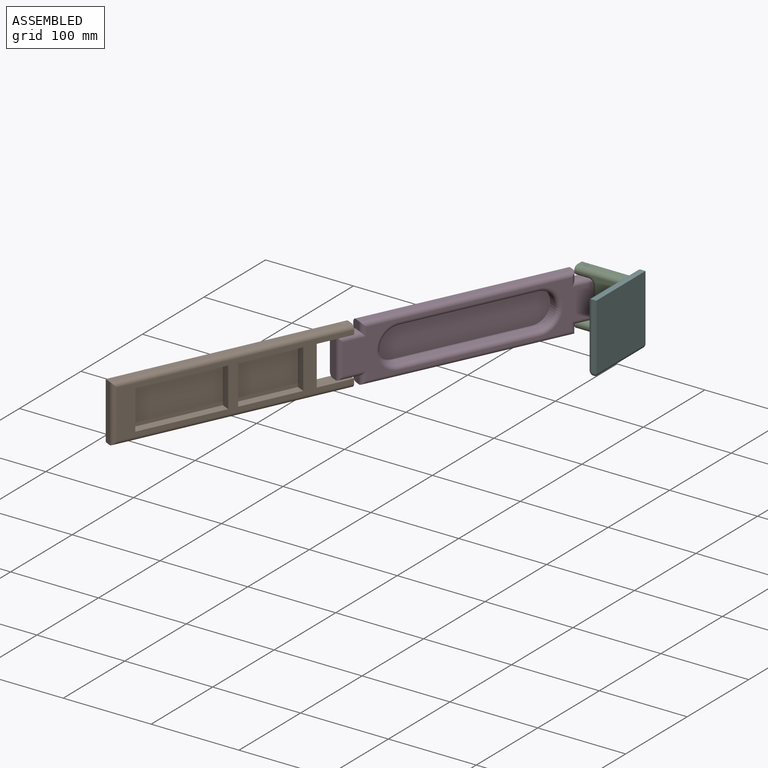
[diagram: assembled view]
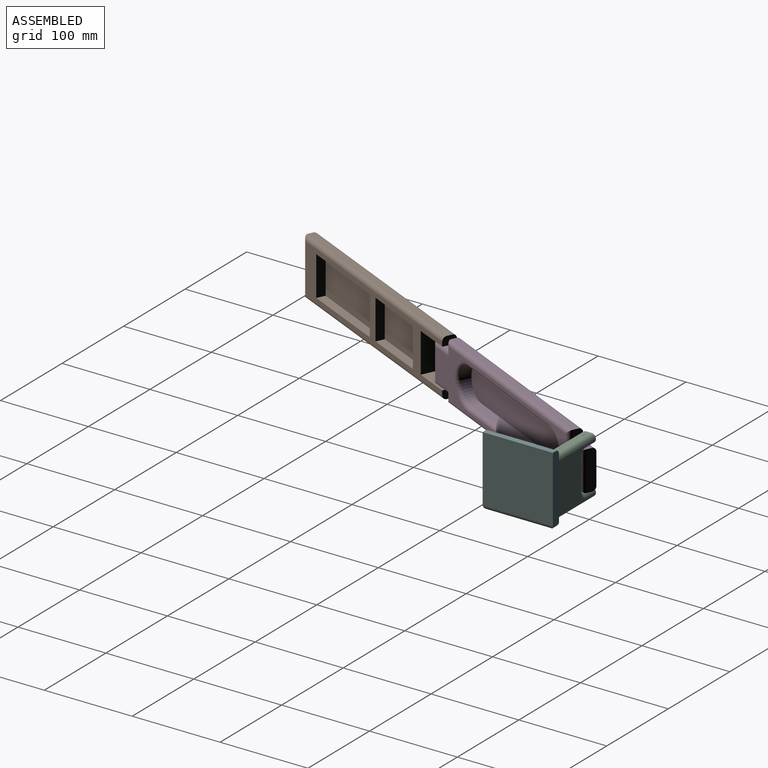
[diagram: assembled view, second angle]
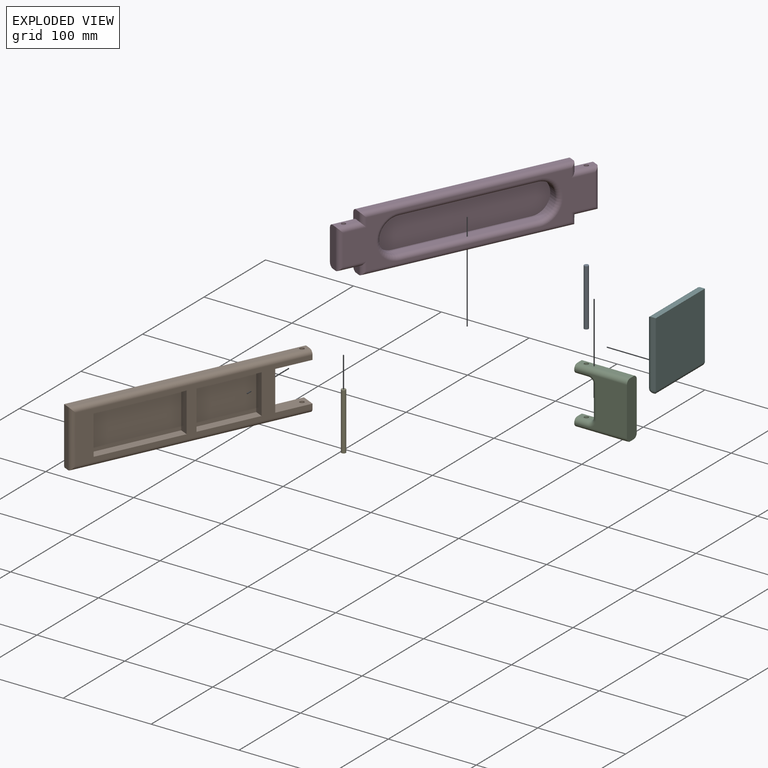
[diagram: exploded view]
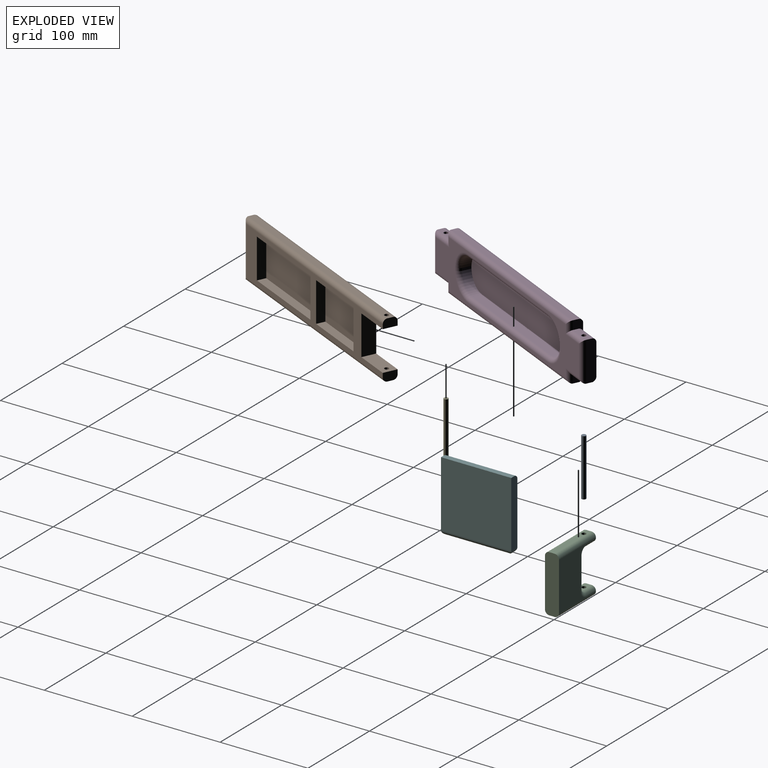
[diagram: exploded view, second angle]
ASSEMBLY  parts=6 mates=5
PART A: 3 faces, bbox 5x5x65 mm
  f0: cylinder r=2.5mm len=65mm, axis (0,0,1), area 1021mm2, adj f1,f2
  f1: plane 5x5mm, normal (0,0,-1), area 19.6mm2, adj f0
  f2: plane 5x5mm, normal (0,0,1), area 19.6mm2, adj f0
PART B: 28 faces, bbox 260x16x65 mm
  f0: plane 255x55mm, normal (0,-1,0), area 4569mm2, adj f1,f5,f9,f10,f11,f12,f14,f15
  f1: plane 16x10mm, normal (1,0,0), area 149.3mm2, adj f0,f2,f6,f19,f22,f25
  f2: plane 255x55mm, normal (0,1,0), area 12219mm2, adj f1,f5,f19,f20,f21,f25,f26,f27
  f3: cylinder r=2.5mm len=10mm, axis (0,0,1), area 157.1mm2, adj f6,f19
  f4: plane 65x6mm, normal (-1,0,0), area 390mm2, adj f6,f7,f24,f27
  f5: plane 16x10mm, normal (1,0,0), area 149.3mm2, adj f0,f2,f7,f21,f23,f26
  f6: plane 260x6mm, normal (0,0,1), area 1540.4mm2, adj f1,f3,f4,f22,f25
  f7: plane 260x6mm, normal (0,0,-1), area 1540.4mm2, adj f4,f5,f8,f23,f26
  f8: cylinder r=2.5mm len=10mm, axis (0,0,1), area 157.1mm2, adj f7,f21
  f9: plane 70x10mm, normal (0,0,-1), area 700mm2, adj f0,f10,f12,f13
  f10: plane 45x10mm, normal (1,0,0), area 450mm2, adj f0,f9,f11,f13
  f11: plane 70x10mm, normal (0,0,1), area 700mm2, adj f0,f10,f12,f13
  f12: plane 45x10mm, normal (-1,0,0), area 450mm2, adj f0,f9,f11,f13
  f13: plane 70x45mm, normal (0,-1,0), area 3150mm2, adj f9,f10,f11,f12
  f14: plane 100x10mm, normal (0,0,-1), area 1000mm2, adj f0,f15,f17,f18
  f15: plane 45x10mm, normal (1,0,0), area 450mm2, adj f0,f14,f16,f18
  f16: plane 100x10mm, normal (0,0,1), area 1000mm2, adj f0,f15,f17,f18
  f17: plane 45x10mm, normal (-1,0,0), area 450mm2, adj f0,f14,f16,f18
  f18: plane 100x45mm, normal (0,-1,0), area 4500mm2, adj f14,f15,f16,f17
  f19: plane 40.13x16mm, normal (0,0,-1), area 622.5mm2, adj f0,f1,f2,f3,f20
  f20: plane 45x16mm, normal (1,0,0), area 720mm2, adj f0,f2,f19,f21
  f21: plane 40.13x16mm, normal (0,0,1), area 622.5mm2, adj f0,f2,f5,f8,f20
  f22: cylinder r=5mm len=260mm, axis (-1,0,0), area 2027.8mm2, adj f0,f1,f6,f24
  f23: cylinder r=5mm len=260mm, axis (1,0,0), area 2027.8mm2, adj f0,f5,f7,f24
  f24: cylinder r=5mm len=65mm, axis (0,0,-1), area 482mm2, adj f0,f4,f22,f23
  f25: cylinder r=5mm len=260mm, axis (1,0,0), area 2027.8mm2, adj f1,f2,f6,f27
  f26: cylinder r=5mm len=260mm, axis (-1,0,0), area 2027.8mm2, adj f2,f5,f7,f27
  f27: cylinder r=5mm len=65mm, axis (0,0,-1), area 482mm2, adj f2,f4,f25,f26
PART C: 24 faces, bbox 65x16x60 mm
  f0: plane 35x6mm, normal (0,0,1), area 210mm2, adj f16,f17,f20,f21
  f1: plane 60x6mm, normal (-1,0,0), area 340.4mm2, adj f5,f7,f11,f12,f15
  f2: plane 55x45mm, normal (0,-1,0), area 1967.9mm2, adj f5,f12,f13,f14,f16,f18
  f3: plane 60x6mm, normal (1,0,0), area 340.4mm2, adj f5,f9,f10,f13,f22
  f4: plane 55x45mm, normal (0,1,0), area 1967.9mm2, adj f5,f15,f19,f21,f22,f23
  f5: plane 65x16mm, normal (0,0,-1), area 1018.5mm2, adj f1,f2,f3,f4,f12,f13,f15,f22
  f6: plane 15x6mm, normal (1,0,0), area 70.4mm2, adj f7,f11,f12,f15,f17
  f7: plane 16x10mm, normal (0,0,1), area 138.5mm2, adj f1,f6,f12,f15
  f8: plane 15x6mm, normal (-1,0,0), area 70.4mm2, adj f9,f10,f13,f20,f22
  f9: plane 16x10mm, normal (0,0,1), area 138.5mm2, adj f3,f8,f13,f22
  f10: cylinder r=2.5mm len=10mm, axis (1,0,0), area 157.1mm2, adj f3,f8
  f11: cylinder r=2.5mm len=10mm, axis (1,0,0), area 157.1mm2, adj f1,f6
  f12: cylinder r=5mm len=60mm, axis (0,0,-1), area 589mm2, adj f1,f2,f5,f6,f7,f14
  f13: cylinder r=5mm len=60mm, axis (0,0,-1), area 589mm2, adj f2,f3,f5,f8,f9,f18
  f14: torus R=10mm, axis (0,1,0), area 84.1mm2, adj f2,f12,f16,f17
  f15: cylinder r=5mm len=60mm, axis (0,0,-1), area 589mm2, adj f1,f4,f5,f6,f7,f19
  f16: cylinder r=5mm len=35mm, axis (-1,0,0), area 274.9mm2, adj f0,f2,f14,f18
  f17: cylinder r=5mm len=6mm, axis (0,1,0), area 47.1mm2, adj f0,f6,f14,f19
  f18: torus R=10mm, axis (0,1,0), area 84.1mm2, adj f2,f13,f16,f20
  f19: torus R=10mm, axis (0,-1,0), area 84.1mm2, adj f4,f15,f17,f21
  f20: cylinder r=5mm len=6mm, axis (0,-1,0), area 47.1mm2, adj f0,f8,f18,f23
  f21: cylinder r=5mm len=35mm, axis (1,0,0), area 274.9mm2, adj f0,f4,f19,f23
  f22: cylinder r=5mm len=60mm, axis (0,0,-1), area 589mm2, adj f3,f4,f5,f8,f9,f23
  f23: torus R=10mm, axis (0,-1,0), area 84.1mm2, adj f4,f20,f21,f22
PART D: 43 faces, bbox 16x280x65 mm
  f0: plane 270x55mm, normal (-1,0,0), area 4386.5mm2, adj f21,f22,f23,f24,f27,f28,f29,f30
  f1: plane 45x11mm, normal (0,-1,0), area 484.3mm2, adj f2,f11,f13,f25,f26,f34
  f2: plane 280x55mm, normal (1,0,0), area 14400mm2, adj f1,f3,f7,f9,f12,f14,f25,f26
  f3: plane 45x11mm, normal (0,1,0), area 484.3mm2, adj f2,f6,f8,f31,f39,f40
  f4: plane 230x6mm, normal (0,0,1), area 1380mm2, adj f9,f14,f28,f42
  f5: plane 230x6mm, normal (0,0,-1), area 1380mm2, adj f7,f12,f37,f41
  f6: plane 25x6mm, normal (0,0,-1), area 130.4mm2, adj f3,f7,f10,f33,f40
  f7: plane 15x11mm, normal (0,1,0), area 110mm2, adj f2,f5,f6,f35,f40,f41
  f8: plane 25x6mm, normal (0,0,1), area 130.4mm2, adj f3,f9,f10,f29,f39
  f9: plane 15x11mm, normal (0,1,0), area 110mm2, adj f2,f4,f8,f27,f39,f42
  f10: cylinder r=2.5mm len=45mm, axis (0,0,1), area 706.9mm2, adj f6,f8
  f11: plane 25x6mm, normal (0,0,-1), area 130.4mm2, adj f1,f12,f15,f26,f36
  f12: plane 15x11mm, normal (0,-1,0), area 110mm2, adj f2,f5,f11,f26,f38,f41
  f13: plane 25x6mm, normal (0,0,1), area 130.4mm2, adj f1,f14,f15,f25,f32
  f14: plane 15x11mm, normal (0,-1,0), area 110mm2, adj f2,f4,f13,f25,f30,f42
  f15: cylinder r=2.5mm len=45mm, axis (0,0,-1), area 706.9mm2, adj f11,f13
  f16: cylinder r=20mm len=40mm, axis (-1,0,0), area 628.3mm2, adj f17,f19,f20,f23
  f17: plane 150x10mm, normal (0,0,-1), area 1500mm2, adj f16,f18,f20,f21
  f18: cylinder r=20mm len=40mm, axis (-1,0,0), area 628.3mm2, adj f17,f19,f20,f22
  f19: plane 150x10mm, normal (0,0,1), area 1500mm2, adj f16,f18,f20,f24
  f20: plane 190x40mm, normal (-1,0,0), area 7256.6mm2, adj f16,f17,f18,f19
  f21: cylinder r=5mm len=150mm, axis (0,1,0), area 1178.1mm2, adj f0,f17,f22,f23
  f22: torus R=25mm, axis (1,0,0), area 538.3mm2, adj f0,f18,f21,f24
  f23: torus R=25mm, axis (1,0,0), area 538.3mm2, adj f0,f16,f21,f24
  f24: cylinder r=5mm len=150mm, axis (0,-1,0), area 1178.1mm2, adj f0,f19,f22,f23
  f25: cylinder r=5mm len=25mm, axis (0,-1,0), area 196.3mm2, adj f1,f2,f13,f14
  f26: cylinder r=5mm len=25mm, axis (0,1,0), area 196.3mm2, adj f1,f2,f11,f12
  f27: cylinder r=5mm len=15mm, axis (0,0,1), area 78.5mm2, adj f0,f9,f28,f29
  f28: cylinder r=5mm len=230mm, axis (0,1,0), area 1777.9mm2, adj f0,f4,f27,f30
  f29: cylinder r=5mm len=30mm, axis (0,-1,0), area 196.3mm2, adj f0,f8,f27,f31
  f30: cylinder r=5mm len=15mm, axis (0,0,-1), area 78.5mm2, adj f0,f14,f28,f32
  f31: cylinder r=5mm len=45mm, axis (0,0,-1), area 324.9mm2, adj f0,f3,f29,f33
  f32: cylinder r=5mm len=30mm, axis (0,-1,0), area 196.3mm2, adj f0,f13,f30,f34
  f33: cylinder r=5mm len=30mm, axis (0,1,0), area 196.3mm2, adj f0,f6,f31,f35
  f34: cylinder r=5mm len=45mm, axis (0,0,-1), area 324.9mm2, adj f0,f1,f32,f36
  f35: cylinder r=5mm len=15mm, axis (0,0,1), area 78.5mm2, adj f0,f7,f33,f37
  f36: cylinder r=5mm len=30mm, axis (0,1,0), area 196.3mm2, adj f0,f11,f34,f38
  f37: cylinder r=5mm len=230mm, axis (0,-1,0), area 1777.9mm2, adj f0,f5,f35,f38
  f38: cylinder r=5mm len=15mm, axis (0,0,-1), area 78.5mm2, adj f0,f12,f36,f37
  f39: cylinder r=5mm len=25mm, axis (0,-1,0), area 196.3mm2, adj f2,f3,f8,f9
  f40: cylinder r=5mm len=25mm, axis (0,1,0), area 196.3mm2, adj f2,f3,f6,f7
  f41: cylinder r=5mm len=230mm, axis (0,1,0), area 1806.4mm2, adj f2,f5,f7,f12
  f42: cylinder r=5mm len=230mm, axis (0,-1,0), area 1806.4mm2, adj f2,f4,f9,f14
PART E: same geometry as A
PART F: 11 faces, bbox 80x80x10 mm
  f0: plane 75x10mm, normal (-1,0,0), area 744.6mm2, adj f1,f3,f4,f5,f10
  f1: plane 80x5mm, normal (0,-1,0), area 400mm2, adj f0,f2,f3,f5
  f2: plane 75x5mm, normal (1,0,0), area 375mm2, adj f1,f3,f6,f7
  f3: plane 80x75mm, normal (0,0,1), area 6000mm2, adj f0,f1,f2,f9
  f4: plane 75x70mm, normal (0,0,-1), area 5250mm2, adj f0,f5,f6,f9
  f5: cylinder r=5mm len=80mm, axis (1,0,0), area 614mm2, adj f0,f1,f4,f6
  f6: cylinder r=5mm len=75mm, axis (0,1,0), area 574.8mm2, adj f2,f4,f5,f8
  f7: cylinder r=5mm len=5mm, axis (0,0,-1), area 25mm2, adj f2,f8,f9
  f8: sphere r=5mm, area 39.3mm2, adj f6,f7,f9
  f9: cylinder r=5mm len=80mm, axis (1,0,0), area 1174.6mm2, adj f3,f4,f7,f8,f10
  f10: cylinder r=5mm len=10mm, axis (0,0,1), area 50mm2, adj f0,f9
PLACE A rot(axis=(0,0,1),154.6deg) t=(-193.83,125.21,215.77)mm
PLACE B rot(axis=(0,0,1),64.9deg) t=(-324.07,-128.51,150.77)mm
PLACE C rot(axis=(0.71,0,-0.71),180deg) t=(-160.71,117.21,182.29)mm
PLACE D rot(axis=(0,0,1),154.6deg) t=(-237.69,76.66,150.77)mm
PLACE E rot(axis=(0,0,1),64.9deg) t=(-324.07,-128.51,215.77)mm
PLACE F rot(axis=(-0.58,0.58,-0.58),120deg) t=(-160.71,7.29,233.18)mm fixed
MATE fastened A.f0 <-> D.f15  axis (0,0,1) through (-212.47,125.21,183.27)mm
MATE revolute E.f0 <-> D.f10  axis (0,0,1) through (-324.17,-109.87,183.27)mm
MATE revolute C.f10 <-> A.f0  axis (0,0,1) through (-212.47,125.21,215.77)mm
MATE fastened E.f0 <-> B.f3  axis (0,0,1) through (-324.17,-109.87,215.77)mm
MATE fastened F.f4 <-> C.f5  axis (-1,0,0) through (-160.71,133.21,183.27)mm
